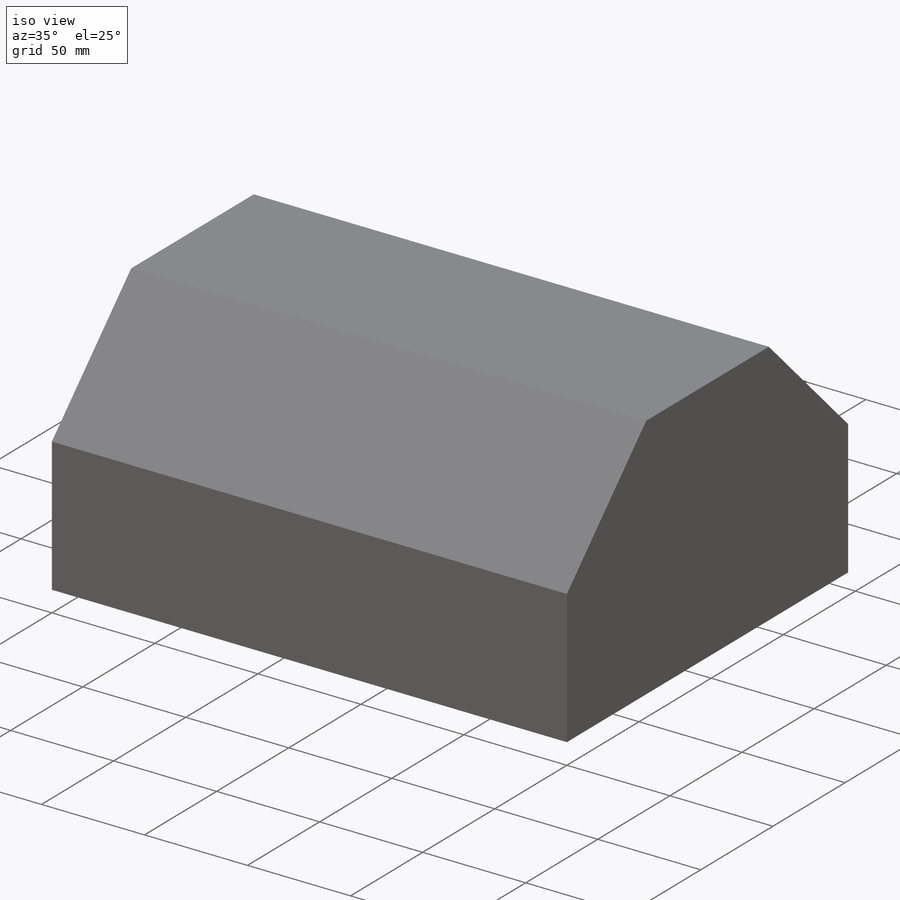
[diagram: iso view]
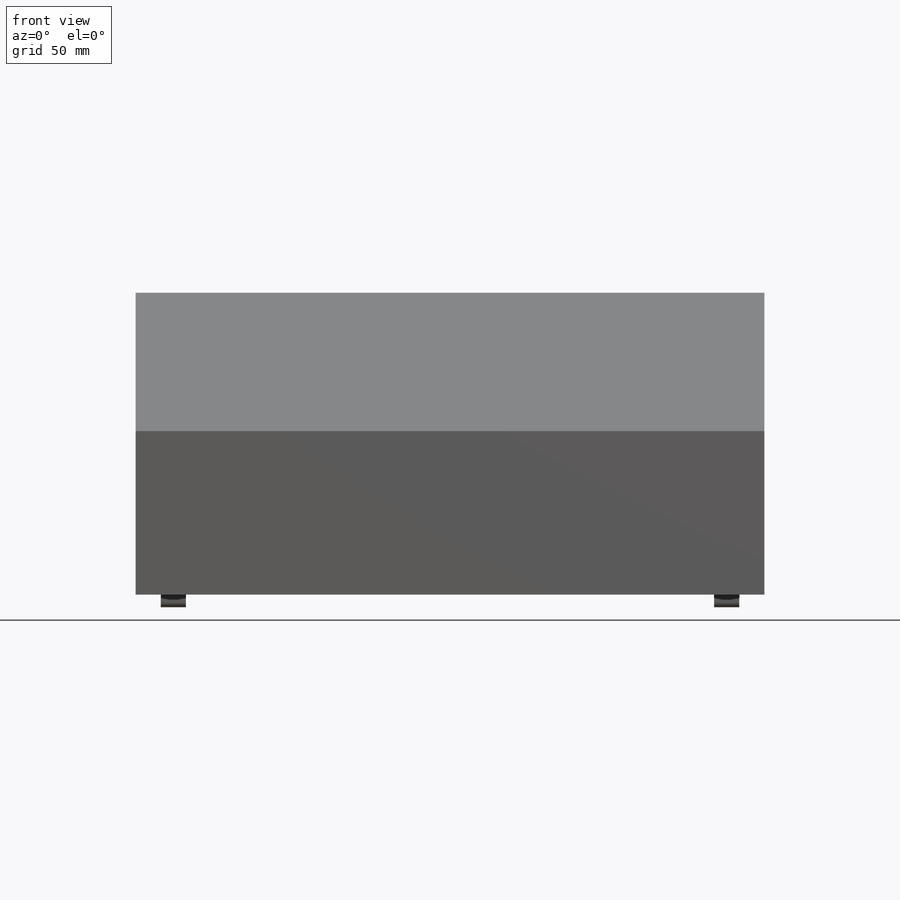
[diagram: front view]
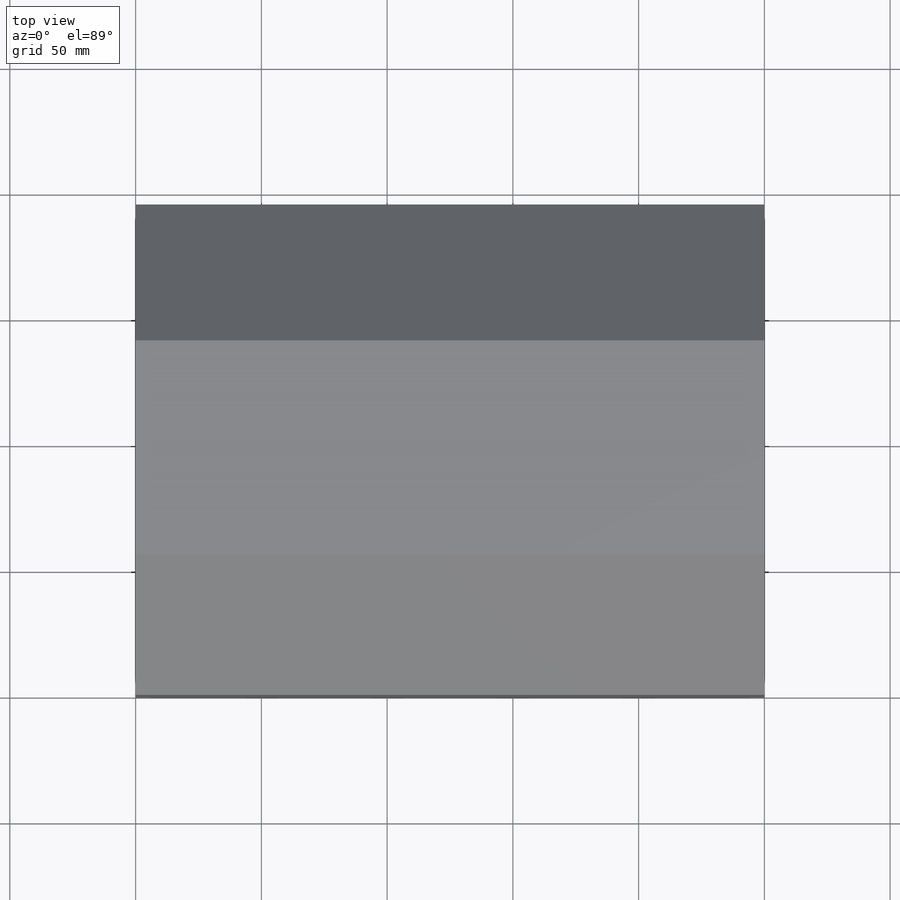
[diagram: top view]
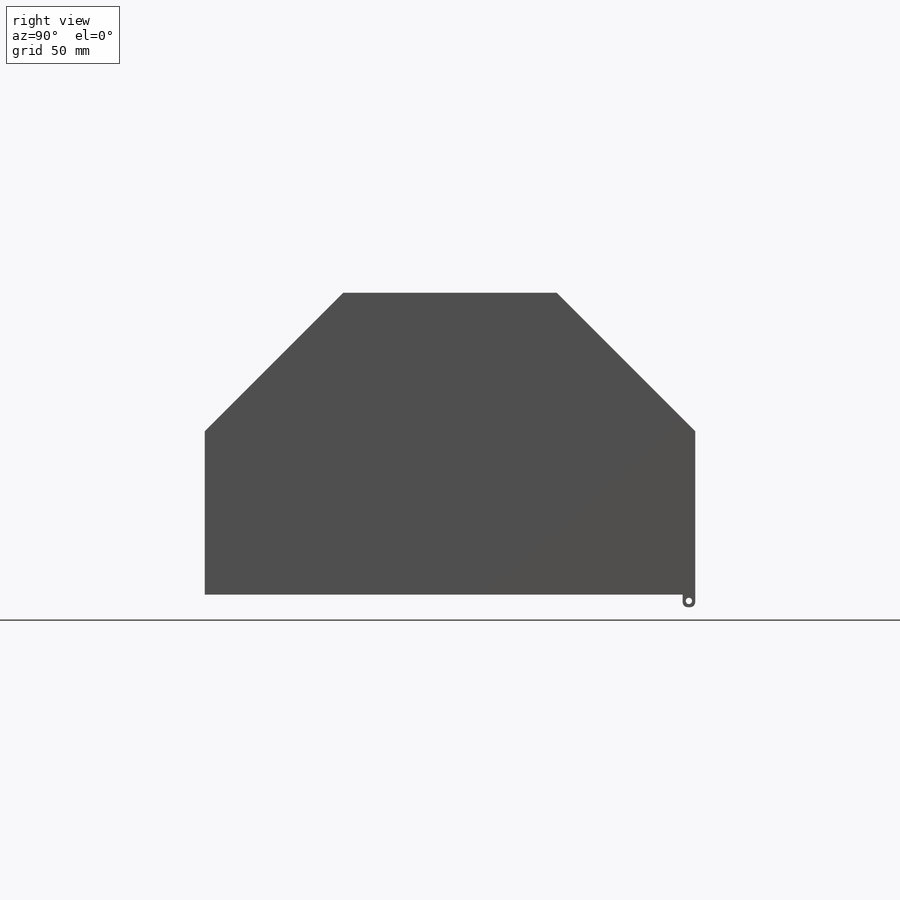
[diagram: right view]
SOLIDWORKS PART (.sldprt)
format: sldprt  version: not decoded by parser v0  size: 223,744 bytes
history: native  units: mm
features: sketch x3, extrude x2, material x1, shell x1, cut_extrude x1, fillet x1 (+13 scaffold rows collapsed)
feature tree (22):
  scaffold x13  (default folders/planes/origin — collapsed)
  material  "Material <not specified>"
  sketch  "Sketch1"  dims[c1.D1=195.0mm c1.D2=65.0mm c1.D3=65.0mm c1.D4=~48.177888mm c2.D4=45.0deg c2.D5=50.0mm c3.D5=45.0deg c3.D6=85.0mm c3.D7=85.0mm c4.D7=270.0deg c5.D7=55.0mm]
  extrude  "Boss-Extrude1"  Depth=250mm
  shell  "Shell1"  Thickness=5mm
  sketch  "Sketch4"  dims[D1=5.0mm D2=10.0mm D3=10.0mm D5=10.0mm D4=12.0]
  extrude  "Boss-Extrude3"  Depth=5mm
  sketch  "Sketch5"  dims[D1=2.5mm D2=2.5mm D3=2.5mm]
  cut_extrude  "Cut-Extrude3"  [1 undecoded]
  fillet  "Fillet2"  Radius=2mm
decode coverage: 7 of 8 modeling features carry decoded parameters
note: ~ marks probable driven/reference dimensions
note: 1 parameter value undecoded
note: suppression state not decoded; provenance and decode notes live in map.json
